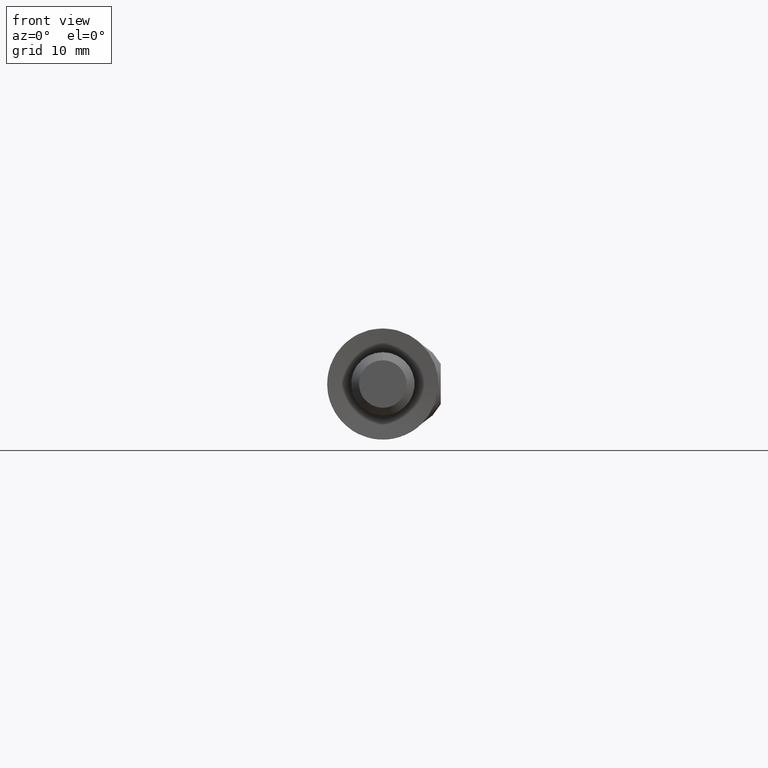
[diagram: clean part render]
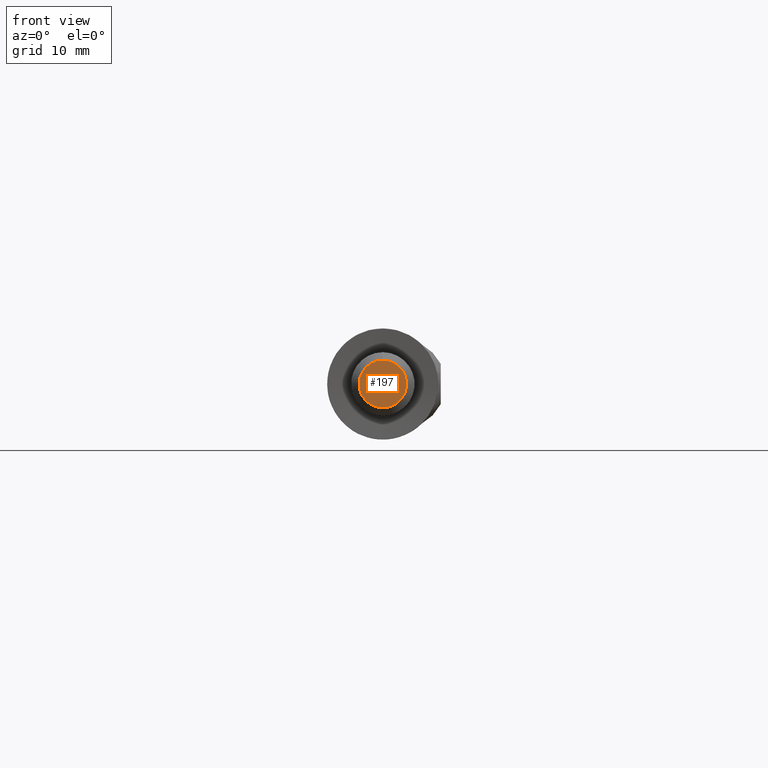
[diagram: same view with one face highlighted and labeled with its STEP entity id]
A machine part, front view. The second image highlights one B-rep face of the part: STEP entity #197.
In plain terms, the highlighted planar face has unit normal (0, -1, 0).
Its self-contained STEP definition (entity closure, byte-faithful):
#149 = CARTESIAN_POINT ( 'NONE',  ( 1.836970198721032700E-015, -15.00000000000000000, 0.0000000000000000000 ) ) ;
#197 = ADVANCED_FACE ( 'NONE', ( #930 ), #1658, .T. ) ;
#376 = CARTESIAN_POINT ( 'NONE',  ( 0.0000000000000000000, -15.00000000000000200, 3.000000000000000000 ) ) ;
#404 = EDGE_CURVE ( 'NONE', #2075, #447, #2573, .T. ) ;
#447 = VERTEX_POINT ( 'NONE', #376 ) ;
#563 = DIRECTION ( 'NONE',  ( 0.0000000000000000000, 0.0000000000000000000, -1.000000000000000000 ) ) ;
#580 = DIRECTION ( 'NONE',  ( 0.0000000000000000000, -1.000000000000000000, 0.0000000000000000000 ) ) ;
#930 = FACE_OUTER_BOUND ( 'NONE', #1450, .T. ) ;
#1291 = CARTESIAN_POINT ( 'NONE',  ( 4.286263797015737100E-016, -15.00000000000000200, -3.000000000000000000 ) ) ;
#1306 = DIRECTION ( 'NONE',  ( 0.0000000000000000000, -1.000000000000000000, 0.0000000000000000000 ) ) ;
#1435 = AXIS2_PLACEMENT_3D ( 'NONE', #1629, #580, #563 ) ;
#1450 = EDGE_LOOP ( 'NONE', ( #2247, #2052 ) ) ;
#1492 = DIRECTION ( 'NONE',  ( 0.0000000000000000000, 0.0000000000000000000, -1.000000000000000000 ) ) ;
#1542 = EDGE_CURVE ( 'NONE', #447, #2075, #2101, .T. ) ;
#1629 = CARTESIAN_POINT ( 'NONE',  ( 0.0000000000000000000, -15.00000000000000200, 0.0000000000000000000 ) ) ;
#1658 = PLANE ( 'NONE',  #2170 ) ;
#1767 = AXIS2_PLACEMENT_3D ( 'NONE', #1943, #1971, #2397 ) ;
#1943 = CARTESIAN_POINT ( 'NONE',  ( 0.0000000000000000000, -15.00000000000000200, 0.0000000000000000000 ) ) ;
#1971 = DIRECTION ( 'NONE',  ( 0.0000000000000000000, -1.000000000000000000, 0.0000000000000000000 ) ) ;
#2052 = ORIENTED_EDGE ( 'NONE', *, *, #404, .T. ) ;
#2075 = VERTEX_POINT ( 'NONE', #1291 ) ;
#2101 = CIRCLE ( 'NONE', #1767, 3.000000000000004000 ) ;
#2170 = AXIS2_PLACEMENT_3D ( 'NONE', #149, #1306, #1492 ) ;
#2247 = ORIENTED_EDGE ( 'NONE', *, *, #1542, .T. ) ;
#2397 = DIRECTION ( 'NONE',  ( 0.0000000000000000000, 0.0000000000000000000, -1.000000000000000000 ) ) ;
#2573 = CIRCLE ( 'NONE', #1435, 3.000000000000004000 ) ;